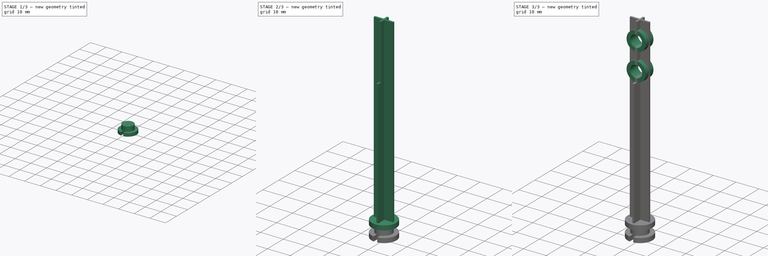
[diagram: build sequence overview — one tinted view per stage of 3, left to right]
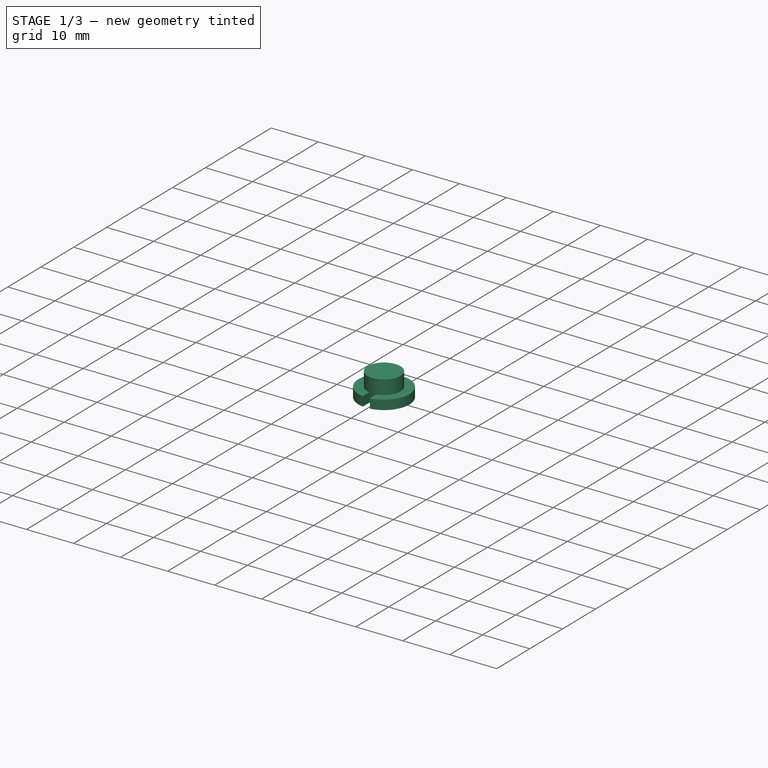
[diagram: stage 1 of 3 — iso view after this stage's code; geometry added in this stage tinted green]
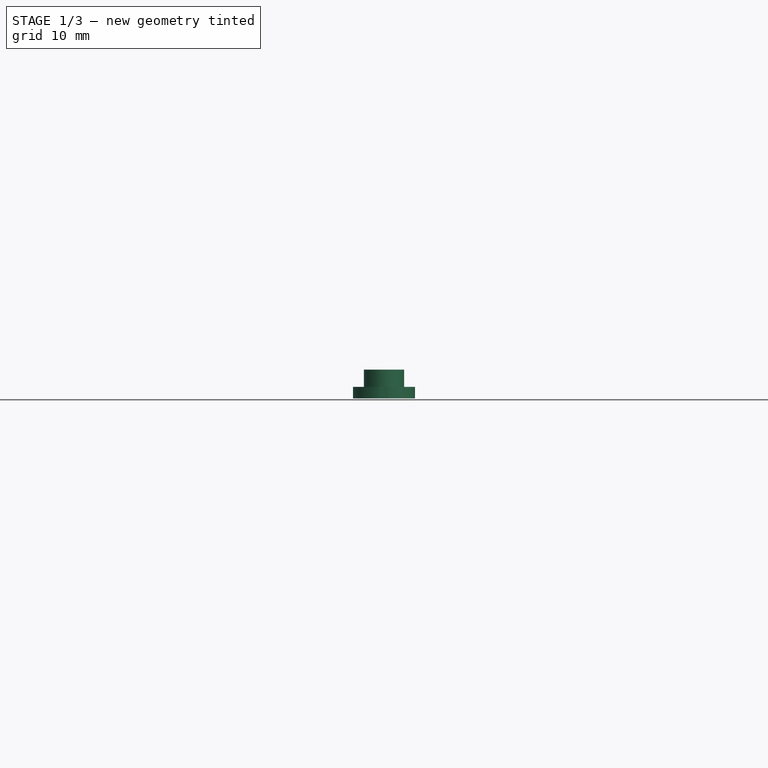
[diagram: stage 1 of 3 — front view after this stage's code; geometry added in this stage tinted green]
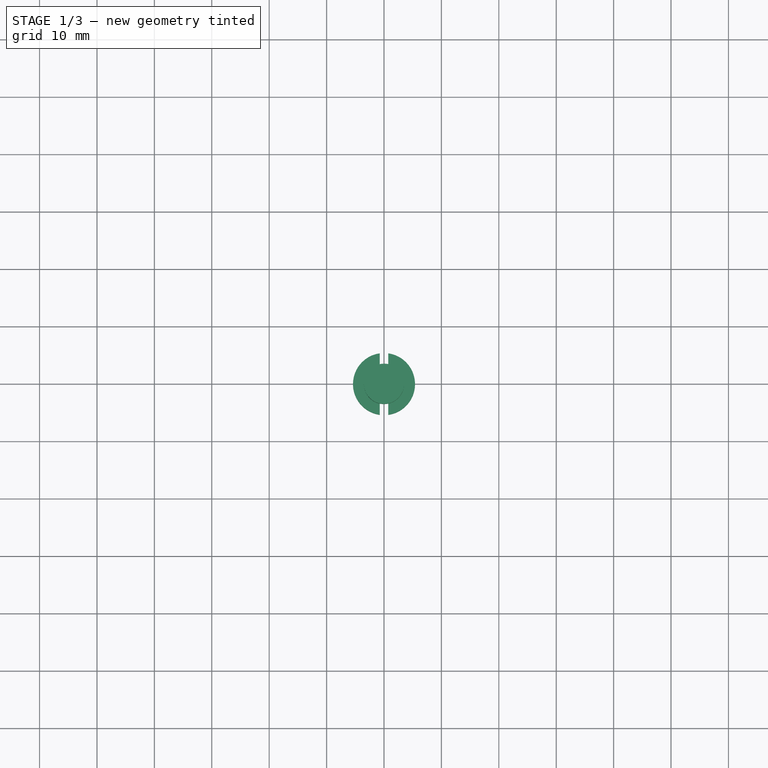
[diagram: stage 1 of 3 — top view after this stage's code; geometry added in this stage tinted green]
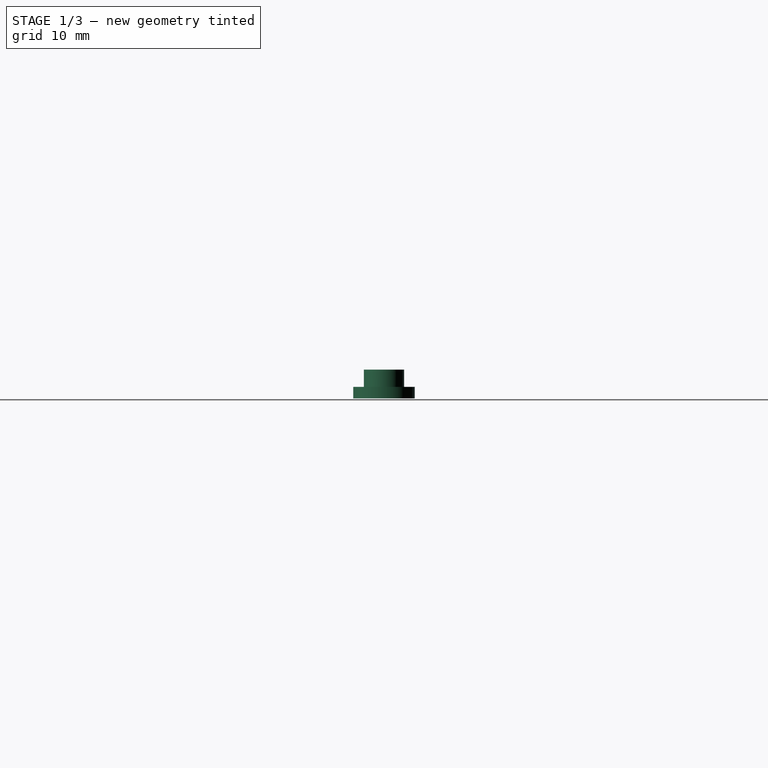
[diagram: stage 1 of 3 — right view after this stage's code; geometry added in this stage tinted green]
FCSTD DOCUMENT  (FreeCAD 0.18.4R)
Label: WaterGunPumpStem
License: All rights reserved
LicenseURL: http://en.wikipedia.org/wiki/All_rights_reserved
objects: Sketcher::SketchObject×9, PartDesign::Pad×6, PartDesign::Pocket×1, PartDesign::Body×1, App::Part×1
note: 24 computed .brp shape members not serialized (recipe doc carries the construction recipe); baked Part::Feature solids carry a one-line shape summary decoded from their .brp

FEATURE [Sketcher::SketchObject] Sketch  label="Template_T"
  MapMode = 5
  Support = -> [XY_Plane001]
  sketch-geometry (22):
    g0: Circle CenterX=0 CenterY=0 CenterZ=0 NormalX=0 NormalY=0 NormalZ=1 AngleXU=0 Radius=5.4
    g1: Circle CenterX=0 CenterY=0 CenterZ=0 NormalX=0 NormalY=0 NormalZ=1 AngleXU=0 Radius=3.5
    g2: LineSegment StartX=-0.75 StartY=5.34766 StartZ=0 EndX=-0.75 EndY=2.75 EndZ=0
    g3: LineSegment StartX=-0.75 StartY=2.75 StartZ=0 EndX=0.75 EndY=2.75 EndZ=0
    g4: LineSegment StartX=0.75 StartY=2.75 StartZ=0 EndX=0.75 EndY=5.34766 EndZ=0
    g5: LineSegment StartX=-0.75 StartY=-5.34766 StartZ=0 EndX=-0.75 EndY=-2.75 EndZ=0
    g6: LineSegment StartX=-0.75 StartY=-2.75 StartZ=0 EndX=0.75 EndY=-2.75 EndZ=0
    g7: LineSegment StartX=0.75 StartY=-2.75 StartZ=0 EndX=0.75 EndY=-5.34766 EndZ=0
    g8: LineSegment StartX=-4.2 StartY=0.4 StartZ=0 EndX=-0.4 EndY=0.4 EndZ=0
    g9: LineSegment StartX=-0.4 StartY=0.4 StartZ=0 EndX=-0.4 EndY=4.2 EndZ=0
    g10: LineSegment StartX=-0.4 StartY=4.2 StartZ=0 EndX=0.4 EndY=4.2 EndZ=0
    g11: LineSegment StartX=0.4 StartY=4.2 StartZ=0 EndX=0.4 EndY=0.4 EndZ=0
    g12: LineSegment StartX=0.4 StartY=0.4 StartZ=0 EndX=4.2 EndY=0.4 EndZ=0
    g13: LineSegment StartX=4.2 StartY=0.4 StartZ=0 EndX=4.2 EndY=-0.4 EndZ=0
    g14: LineSegment StartX=4.2 StartY=-0.4 StartZ=0 EndX=0.4 EndY=-0.4 EndZ=0
    g15: LineSegment StartX=0.4 StartY=-0.4 StartZ=0 EndX=0.4 EndY=-4.2 EndZ=0
    g16: LineSegment StartX=0.4 StartY=-4.2 StartZ=0 EndX=-0.4 EndY=-4.2 EndZ=0
    g17: LineSegment StartX=-0.4 StartY=-4.2 StartZ=0 EndX=-0.4 EndY=-0.4 EndZ=0
    g18: LineSegment StartX=-0.4 StartY=-0.4 StartZ=0 EndX=-4.2 EndY=-0.4 EndZ=0
    g19: LineSegment StartX=-4.2 StartY=-0.4 StartZ=0 EndX=-4.2 EndY=0.4 EndZ=0
    g20: LineSegment StartX=-0.4 StartY=-2.4 StartZ=0 EndX=0.4 EndY=-2.4 EndZ=0
    g21: LineSegment StartX=-0.4 StartY=2.4 StartZ=0 EndX=0.4 EndY=2.4 EndZ=0
  constraints (64):
    c: Coincident(g0,g-1)
    c: Coincident(g1,g0)
    c: Radius(g0) = 5.4  'Ro'
    c: Radius(g1) = 3.5  'Ri'
    c: PointOnObject(g2,g0)
    c: Vertical(g2)
    c: Coincident(g3,g2)
    c: Horizontal(g3)
    c: Coincident(g4,g3)
    c: Vertical(g4)
    c: Symmetric(g2,g4,g-2)
    c: PointOnObject(g5,g0)
    c: Vertical(g5)
    c: Coincident(g6,g5)
    c: Horizontal(g6)
    c: Coincident(g7,g6)
    c: PointOnObject(g7,g0)
    c: Vertical(g7)
    c: PointOnObject(g6,g4)
    c: PointOnObject(g5,g2)
    c: Equal(g5,g2)
    c: DistanceY(g5,g2) = 5.5
    c: DistanceX(g2,g4) = 1.5
    c: Horizontal(g8)
    c: Coincident(g8,g9)
    c: Vertical(g9)
    c: Coincident(g9,g10)
    c: Horizontal(g10)
    c: Coincident(g10,g11)
    c: Vertical(g11)
    c: Coincident(g11,g12)
    c: Horizontal(g12)
    c: Coincident(g12,g13)
    c: Vertical(g13)
    c: Coincident(g13,g14)
    c: Horizontal(g14)
    c: Coincident(g14,g15)
    c: Vertical(g15)
    c: Coincident(g15,g16)
    c: Horizontal(g16)
    c: Coincident(g16,g17)
    c: Vertical(g17)
    c: Coincident(g17,g18)
    c: Horizontal(g18)
    c: Coincident(g18,g19)
    c: Vertical(g19)
    c: Coincident(g19,g8)
    c: Symmetric(g17,g14,g-2)
    c: Symmetric(g8,g17,g-1)
    c: PointOnObject(g11,g8)
    c: PointOnObject(g14,g11)
    c: Equal(g10,g19)
    c: DistanceX(g10,g10) = 0.8
    c: Equal(g12,g8)
    c: Equal(g9,g17)
    c: Equal(g8,g9)
    c: DistanceX(g8,g12) = 8.4  'Span'
    c: PointOnObject(g20,g17)
    c: PointOnObject(g20,g15)
    c: Horizontal(g20)
    c: PointOnObject(g21,g11)
    c: Horizontal(g21)
    c: Symmetric(g21,g20,g-1)
    c: DistanceY(g20,g21) = 4.8  'LockingThickness'
FEATURE [Sketcher::SketchObject] Sketch001  label="Template_F"
  ExternalGeometry = -> [Sketch]
  MapMode = 5
  Placement = pos=(0,0,0) rot=(1,0,0;1.5708rad)
  Support = -> [XZ_Plane001]
  expr: Constraints[28] = Template_T.Constraints.Ri * 2
  expr: Constraints[8] = Template_T.Constraints.Ro * 2
  sketch-geometry (22):
    g0: LineSegment StartX=-5.4 StartY=0 StartZ=0 EndX=5.4 EndY=0 EndZ=0
    g1: LineSegment StartX=5.4 StartY=0 StartZ=0 EndX=5.4 EndY=2 EndZ=0
    g2: LineSegment StartX=5.4 StartY=2 StartZ=0 EndX=-5.4 EndY=2 EndZ=0
    g3: LineSegment StartX=-5.4 StartY=2 StartZ=0 EndX=-5.4 EndY=0 EndZ=0
    g4: LineSegment StartX=-5.4 StartY=7 StartZ=0 EndX=5.4 EndY=7 EndZ=0
    g5: LineSegment StartX=5.4 StartY=7 StartZ=0 EndX=5.4 EndY=5 EndZ=0
    g6: LineSegment StartX=5.4 StartY=5 StartZ=0 EndX=-5.4 EndY=5 EndZ=0
    g7: LineSegment StartX=-5.4 StartY=5 StartZ=0 EndX=-5.4 EndY=7 EndZ=0
    g8: LineSegment StartX=-3.5 StartY=5 StartZ=0 EndX=-3.5 EndY=2 EndZ=0
    g9: LineSegment StartX=3.5 StartY=5 StartZ=0 EndX=3.5 EndY=2 EndZ=0
    g10: LineSegment StartX=-4.2 StartY=7 StartZ=0 EndX=-4.2 EndY=62 EndZ=0
    g11: LineSegment StartX=-4.2 StartY=62 StartZ=0 EndX=4.2 EndY=62 EndZ=0
    g12: LineSegment StartX=4.2 StartY=62 StartZ=0 EndX=4.2 EndY=7 EndZ=0
    g13: LineSegment StartX=-0.4 StartY=7 StartZ=0 EndX=-0.4 EndY=62 EndZ=0
    g14: LineSegment StartX=0.4 StartY=62 StartZ=0 EndX=0.4 EndY=7 EndZ=0
    g15: LineSegment StartX=-4.2 StartY=62 StartZ=0 EndX=-4.2 EndY=86 EndZ=0
    g16: LineSegment StartX=-4.2 StartY=86 StartZ=0 EndX=4.2 EndY=86 EndZ=0
    g17: LineSegment StartX=4.2 StartY=86 StartZ=0 EndX=4.2 EndY=62 EndZ=0
    g18: Circle CenterX=0 CenterY=66.2 CenterZ=0 NormalX=0 NormalY=0 NormalZ=1 AngleXU=0 Radius=4.2
    g19: Circle CenterX=0 CenterY=78.2 CenterZ=0 NormalX=0 NormalY=0 NormalZ=1 AngleXU=0 Radius=4.2
    g20: Circle CenterX=0 CenterY=66.2 CenterZ=0 NormalX=0 NormalY=0 NormalZ=1 AngleXU=0 Radius=2.6
    g21: Circle CenterX=0 CenterY=78.2 CenterZ=0 NormalX=0 NormalY=0 NormalZ=1 AngleXU=0 Radius=2.6
  constraints (66):
    c: Coincident(g0,g1)
    c: Coincident(g1,g2)
    c: Coincident(g2,g3)
    c: Coincident(g3,g0)
    c: Horizontal(g0)
    c: Vertical(g1)
    c: Vertical(g3)
    c: PointOnObject(g-3,g0)
    c: DistanceX(g0,g0) = 10.8
    c: DistanceY(g3,g3) = 2  'DiscHeight'
    c: Symmetric(g2,g1,g-2)
    c: Coincident(g4,g5)
    c: Coincident(g5,g6)
    c: Coincident(g6,g7)
    c: Coincident(g7,g4)
    c: Horizontal(g4)
    c: Horizontal(g6)
    c: Vertical(g5)
    c: Vertical(g7)
    c: PointOnObject(g6,g3)
    c: PointOnObject(g5,g1)
    c: Equal(g7,g3)
    c: PointOnObject(g8,g6)
    c: PointOnObject(g8,g2)
    c: Vertical(g8)
    c: PointOnObject(g9,g2)
    c: Vertical(g9)
    c: Symmetric(g8,g9,g-2)
    c: DistanceX(g8,g9) = 7
    c: DistanceY(g8,g8) = 3  'GapHeight'
    c: PointOnObject(g10,g4)
    c: Vertical(g10)
    c: Coincident(g10,g11)
    c: Horizontal(g11)
    c: Coincident(g11,g12)
    c: PointOnObject(g12,g4)
    c: Vertical(g12)
    c: DistanceY(g10,g10) = 55  'StemHeight'
    c: PointOnObject(g-3,g10)
    c: PointOnObject(g-4,g12)
    c: PointOnObject(g13,g4)
    c: PointOnObject(g13,g11)
    c: Vertical(g13)
    c: PointOnObject(g14,g11)
    c: PointOnObject(g14,g4)
    c: Vertical(g14)
    c: PointOnObject(g-4,g14)
    c: PointOnObject(g-3,g13)
    c: Coincident(g10,g15)
    c: Vertical(g15)
    c: Coincident(g15,g16)
    c: Horizontal(g16)
    c: Coincident(g16,g17)
    c: Coincident(g17,g11)
    c: Vertical(g17)
    c: DistanceY(g15,g15) = 24  'LockingHeight'
    c: PointOnObject(g18,g-2)
    c: Tangent(g17,g18)
    c: Tangent(g18,g11)
    c: PointOnObject(g19,g-2)
    c: Equal(g19,g18)
    c: DistanceY(g18,g19) = 12
    c: Coincident(g20,g18)
    c: Coincident(g21,g19)
    c: Equal(g21,g20)
    c: Radius(g21) = 2.6
FEATURE [Sketcher::SketchObject] Sketch002
  ExternalGeometry = -> [Sketch]
  MapMode = 5
  Support = -> [XY_Plane001]
  sketch-geometry (8):
    g0: ArcOfCircle CenterX=0 CenterY=0 CenterZ=0 NormalX=0 NormalY=0 NormalZ=1 AngleXU=0 Radius=5.4 StartAngle=1.71014 EndAngle=4.57305
    g1: LineSegment StartX=-0.75 StartY=2.75 StartZ=0 EndX=-0.75 EndY=5.34766 EndZ=0
    g2: LineSegment StartX=0.75 StartY=2.75 StartZ=0 EndX=0.75 EndY=5.34766 EndZ=0
    g3: LineSegment StartX=0.75 StartY=2.75 StartZ=0 EndX=-0.75 EndY=2.75 EndZ=0
    g4: LineSegment StartX=-0.75 StartY=-2.75 StartZ=0 EndX=-0.75 EndY=-5.34766 EndZ=0
    g5: LineSegment StartX=0.75 StartY=-2.75 StartZ=0 EndX=0.75 EndY=-5.34766 EndZ=0
    g6: LineSegment StartX=0.75 StartY=-2.75 StartZ=0 EndX=-0.75 EndY=-2.75 EndZ=0
    g7: ArcOfCircle CenterX=0 CenterY=0 CenterZ=0 NormalX=0 NormalY=0 NormalZ=1 AngleXU=0 Radius=5.4 StartAngle=4.85173 EndAngle=7.71464
  constraints (20):
    c: Coincident(g0,g-1)
    c: Equal(g0,g-3)
    c: Coincident(g1,g-4)
    c: Vertical(g1)
    c: Coincident(g2,g-4)
    c: Vertical(g2)
    c: Coincident(g3,g2)
    c: Coincident(g3,g1)
    c: Coincident(g0,g1)
    c: Coincident(g7,g2)
    c: Coincident(g4,g-5)
    c: Vertical(g4)
    c: Coincident(g5,g-5)
    c: Vertical(g5)
    c: Coincident(g6,g5)
    c: Coincident(g6,g4)
    c: Equal(g0,g7)
    c: Coincident(g0,g4)
    c: Coincident(g7,g5)
    c: Coincident(g0,g7)
FEATURE [PartDesign::Pad] Pad
  Length = 2
  Length2 = 100
  Profile = -> Sketch002
  Type = 0
  expr: Length = Template_F.Constraints.DiscHeight
FEATURE [Sketcher::SketchObject] Sketch003
  AttachmentOffset = pos=(0,0,2) rot=(0,0,1;0rad)
  ExternalGeometry = -> [Sketch]
  MapMode = 5
  Placement = pos=(0,0,2) rot=(0,0,1;0rad)
  Support = -> [XY_Plane001]
  expr: AttachmentOffset.Base.z = Sketch002.Placement.Base.z + Pad.Length
  sketch-geometry (1):
    g0: Circle CenterX=0 CenterY=0 CenterZ=0 NormalX=0 NormalY=0 NormalZ=1 AngleXU=0 Radius=3.5
  constraints (2):
    c: Coincident(g0,g-1)
    c: Equal(g0,g-3)
FEATURE [PartDesign::Pad] Pad001
  BaseFeature = -> Pad
  Length = 3
  Length2 = 100
  Profile = -> Sketch003
  Type = 0
  expr: Length = Template_F.Constraints.GapHeight
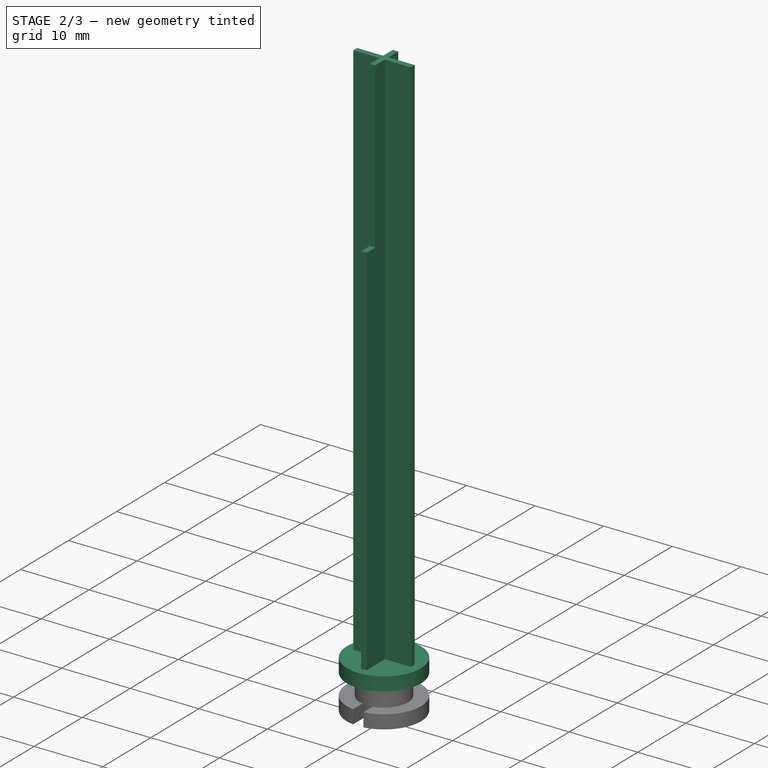
[diagram: stage 2 of 3 — iso view after this stage's code; geometry added in this stage tinted green]
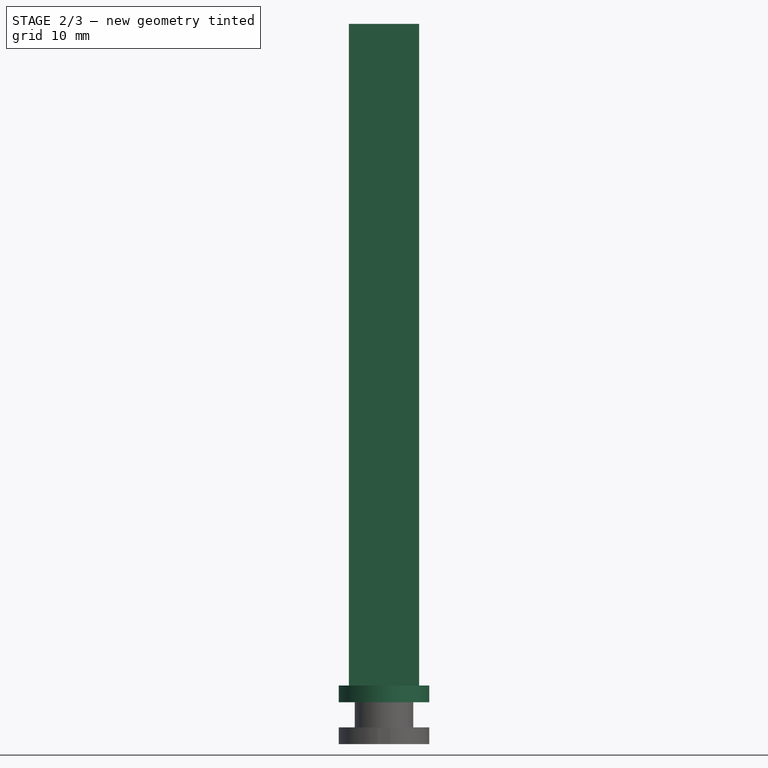
[diagram: stage 2 of 3 — front view after this stage's code; geometry added in this stage tinted green]
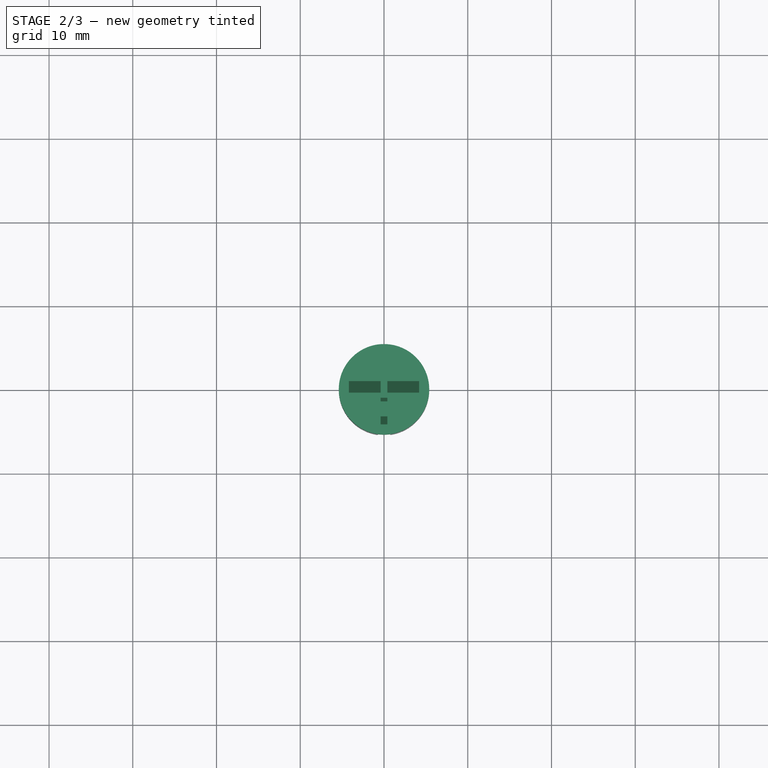
[diagram: stage 2 of 3 — top view after this stage's code; geometry added in this stage tinted green]
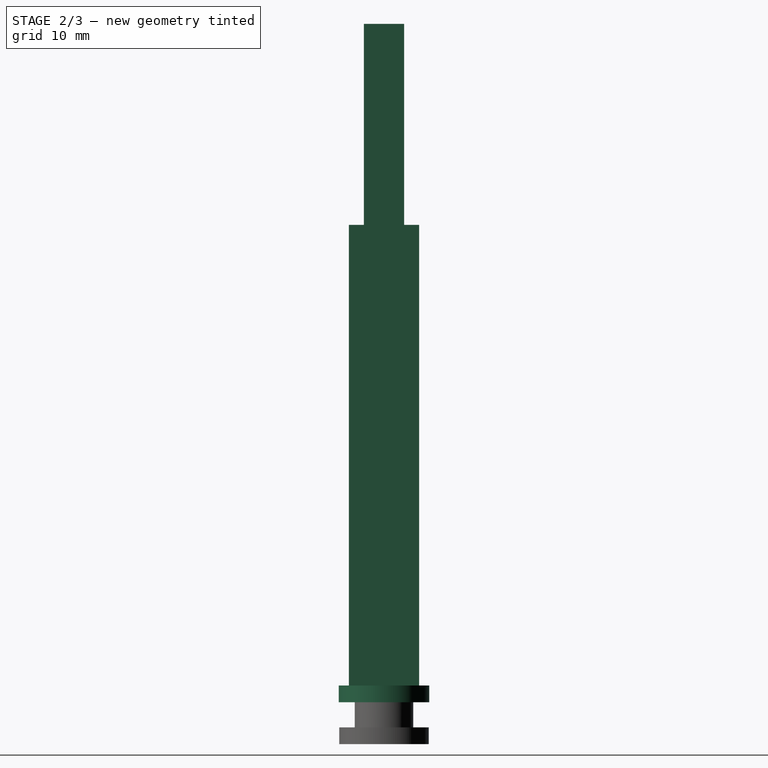
[diagram: stage 2 of 3 — right view after this stage's code; geometry added in this stage tinted green]
FEATURE [Sketcher::SketchObject] Sketch004
  AttachmentOffset = pos=(0,0,5) rot=(0,0,1;0rad)
  ExternalGeometry = -> [Sketch]
  MapMode = 5
  Placement = pos=(0,0,5) rot=(0,0,1;0rad)
  Support = -> [XY_Plane001]
  expr: AttachmentOffset.Base.z = Sketch003.Placement.Base.z + Pad001.Length
  sketch-geometry (1):
    g0: Circle CenterX=0 CenterY=0 CenterZ=0 NormalX=0 NormalY=0 NormalZ=1 AngleXU=0 Radius=5.4
  constraints (2):
    c: Coincident(g0,g-1)
    c: Equal(g0,g-3)
FEATURE [PartDesign::Pad] Pad002
  BaseFeature = -> Pad001
  Length = 2
  Length2 = 100
  Profile = -> Sketch004
  Type = 0
  expr: Length = Template_F.Constraints.DiscHeight
FEATURE [Sketcher::SketchObject] Sketch005
  AttachmentOffset = pos=(0,0,7) rot=(0,0,1;0rad)
  ExternalGeometry = -> [Sketch]
  MapMode = 5
  Placement = pos=(0,0,7) rot=(0,0,1;0rad)
  Support = -> [XY_Plane001]
  expr: AttachmentOffset.Base.z = Sketch004.Placement.Base.z + Pad002.Length
  sketch-geometry (12):
    g0: LineSegment StartX=-4.2 StartY=-0.4 StartZ=0 EndX=-0.4 EndY=-0.4 EndZ=0
    g1: LineSegment StartX=-0.4 StartY=-0.4 StartZ=0 EndX=-0.4 EndY=-4.2 EndZ=0
    g2: LineSegment StartX=-0.4 StartY=-4.2 StartZ=0 EndX=0.4 EndY=-4.2 EndZ=0
    g3: LineSegment StartX=0.4 StartY=-4.2 StartZ=0 EndX=0.4 EndY=-0.4 EndZ=0
    g4: LineSegment StartX=0.4 StartY=-0.4 StartZ=0 EndX=4.2 EndY=-0.4 EndZ=0
    g5: LineSegment StartX=4.2 StartY=-0.4 StartZ=0 EndX=4.2 EndY=0.4 EndZ=0
    g6: LineSegment StartX=4.2 StartY=0.4 StartZ=0 EndX=0.4 EndY=0.4 EndZ=0
    g7: LineSegment StartX=0.4 StartY=0.4 StartZ=0 EndX=0.4 EndY=4.2 EndZ=0
    g8: LineSegment StartX=0.4 StartY=4.2 StartZ=0 EndX=-0.4 EndY=4.2 EndZ=0
    g9: LineSegment StartX=-0.4 StartY=4.2 StartZ=0 EndX=-0.4 EndY=0.4 EndZ=0
    g10: LineSegment StartX=-0.4 StartY=0.4 StartZ=0 EndX=-4.2 EndY=0.4 EndZ=0
    g11: LineSegment StartX=-4.2 StartY=0.4 StartZ=0 EndX=-4.2 EndY=-0.4 EndZ=0
  constraints (24):
    c: Coincident(g-9,g0)
    c: Coincident(g0,g-9)
    c: Coincident(g0,g1)
    c: Coincident(g1,g-8)
    c: Coincident(g1,g2)
    c: Coincident(g2,g-7)
    c: Coincident(g2,g3)
    c: Coincident(g3,g-7)
    c: Coincident(g3,g4)
    c: Coincident(g4,g-6)
    c: Coincident(g4,g5)
    c: Coincident(g5,g-5)
    c: Coincident(g5,g6)
    c: Coincident(g6,g-5)
    c: Coincident(g6,g7)
    c: Coincident(g7,g-4)
    c: Coincident(g7,g8)
    c: Coincident(g8,g-3)
    c: Coincident(g8,g9)
    c: Coincident(g9,g-10)
    c: Coincident(g9,g10)
    c: Coincident(g10,g-10)
    c: Coincident(g10,g11)
    c: Coincident(g11,g0)
FEATURE [PartDesign::Pad] Pad003
  BaseFeature = -> Pad002
  Length = 55
  Length2 = 100
  Profile = -> Sketch005
  Type = 0
  expr: Length = Template_F.Constraints.StemHeight
FEATURE [Sketcher::SketchObject] Sketch006
  AttachmentOffset = pos=(0,0,62) rot=(0,0,1;0rad)
  ExternalGeometry = -> [Sketch]
  MapMode = 5
  Placement = pos=(0,0,62) rot=(0,0,1;0rad)
  Support = -> [XY_Plane001]
  expr: AttachmentOffset.Base.z = Sketch005.Placement.Base.z + Pad003.Length
  sketch-geometry (12):
    g0: LineSegment StartX=4.2 StartY=0.4 StartZ=0 EndX=4.2 EndY=-0.4 EndZ=0
    g1: LineSegment StartX=-4.2 StartY=-0.4 StartZ=0 EndX=-4.2 EndY=0.4 EndZ=0
    g2: LineSegment StartX=-0.4 StartY=2.4 StartZ=0 EndX=-0.4 EndY=0.4 EndZ=0
    g3: LineSegment StartX=-0.4 StartY=0.4 StartZ=0 EndX=-4.2 EndY=0.4 EndZ=0
    g4: LineSegment StartX=-4.2 StartY=-0.4 StartZ=0 EndX=-0.4 EndY=-0.4 EndZ=0
    g5: LineSegment StartX=-0.4 StartY=-0.4 StartZ=0 EndX=-0.4 EndY=-2.4 EndZ=0
    g6: LineSegment StartX=-0.4 StartY=2.4 StartZ=0 EndX=0.4 EndY=2.4 EndZ=0
    g7: LineSegment StartX=0.4 StartY=2.4 StartZ=0 EndX=0.4 EndY=0.4 EndZ=0
    g8: LineSegment StartX=0.4 StartY=0.4 StartZ=0 EndX=4.2 EndY=0.4 EndZ=0
    g9: LineSegment StartX=4.2 StartY=-0.4 StartZ=0 EndX=0.4 EndY=-0.4 EndZ=0
    g10: LineSegment StartX=0.4 StartY=-0.4 StartZ=0 EndX=0.4 EndY=-2.4 EndZ=0
    g11: LineSegment StartX=0.4 StartY=-2.4 StartZ=0 EndX=-0.4 EndY=-2.4 EndZ=0
  constraints (28):
    c: Coincident(g0,g-4)
    c: Coincident(g2,g-5)
    c: Vertical(g2)
    c: Coincident(g3,g2)
    c: Coincident(g3,g1)
    c: Horizontal(g3)
    c: Coincident(g4,g1)
    c: Horizontal(g4)
    c: Coincident(g5,g4)
    c: Coincident(g5,g-6)
    c: Vertical(g5)
    c: Coincident(g1,g-3)
    c: Coincident(g0,g-4)
    c: Coincident(g1,g-3)
    c: Coincident(g2,g6)
    c: Coincident(g6,g-5)
    c: Coincident(g6,g7)
    c: Vertical(g7)
    c: Coincident(g7,g8)
    c: Coincident(g8,g0)
    c: Horizontal(g8)
    c: Coincident(g0,g9)
    c: Horizontal(g9)
    c: Coincident(g9,g10)
    c: Coincident(g10,g-6)
    c: Vertical(g10)
    c: Coincident(g10,g11)
    c: Coincident(g11,g5)
FEATURE [PartDesign::Pad] Pad004
  BaseFeature = -> Pad003
  Length = 24
  Length2 = 100
  Profile = -> Sketch006
  Refine = true
  Type = 0
  expr: Length = Template_F.Constraints.LockingHeight
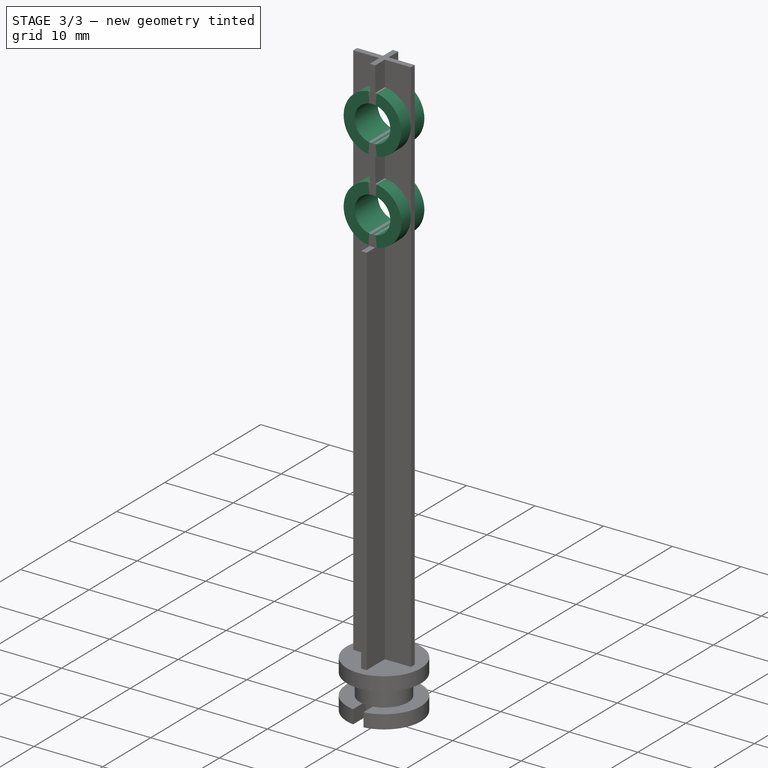
[diagram: stage 3 of 3 — iso view after this stage's code; geometry added in this stage tinted green]
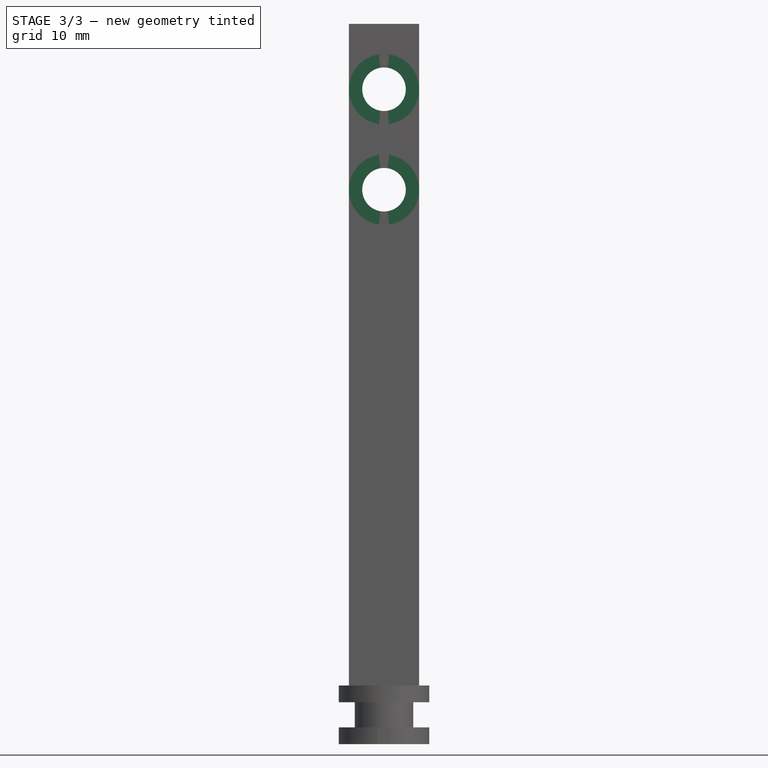
[diagram: stage 3 of 3 — front view after this stage's code; geometry added in this stage tinted green]
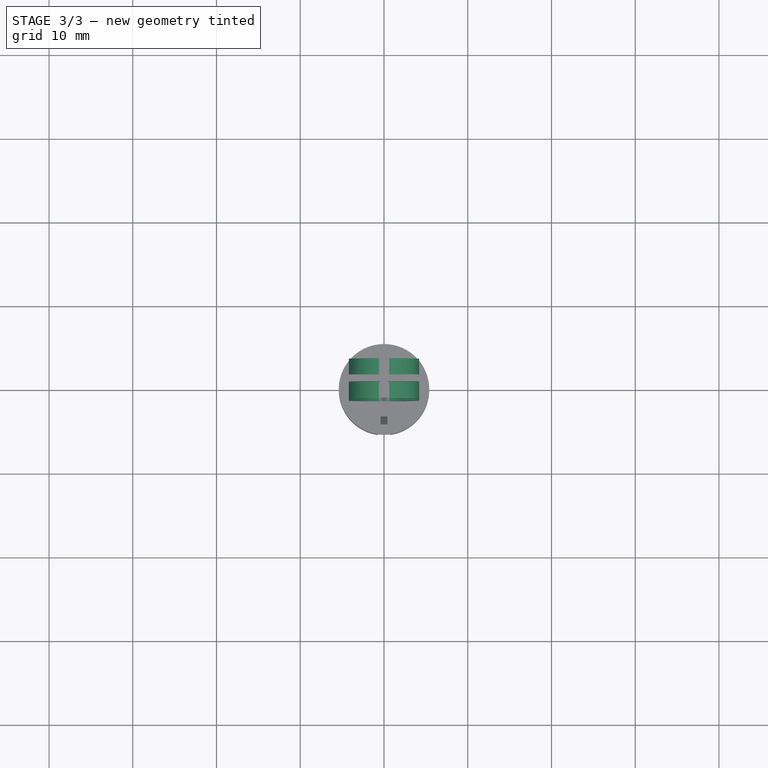
[diagram: stage 3 of 3 — top view after this stage's code; geometry added in this stage tinted green]
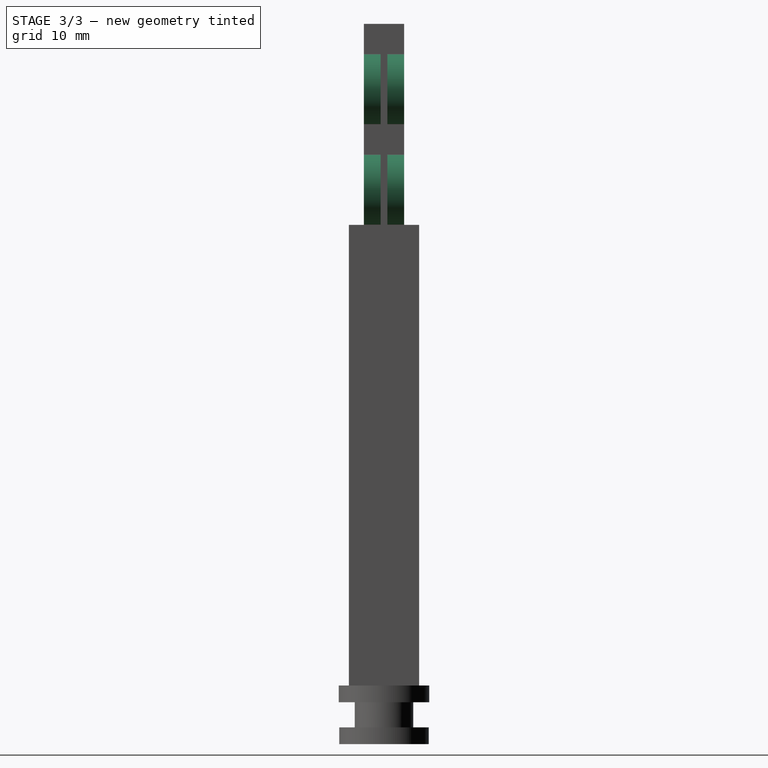
[diagram: stage 3 of 3 — right view after this stage's code; geometry added in this stage tinted green]
FEATURE [Sketcher::SketchObject] Sketch007
  ExternalGeometry = -> [Sketch001]
  MapMode = 5
  Placement = pos=(0,0,0) rot=(1,0,0;1.5708rad)
  Support = -> [XZ_Plane001]
  sketch-geometry (2):
    g0: Circle CenterX=0 CenterY=78.2 CenterZ=0 NormalX=0 NormalY=0 NormalZ=1 AngleXU=0 Radius=4.2
    g1: Circle CenterX=0 CenterY=66.2 CenterZ=0 NormalX=0 NormalY=0 NormalZ=1 AngleXU=0 Radius=4.2
  constraints (4):
    c: Coincident(g0,g-4)
    c: Coincident(g1,g-3)
    c: Equal(g-3,g1)
    c: Equal(g0,g-4)
FEATURE [PartDesign::Pad] Pad005
  BaseFeature = -> Pad004
  Length = 4.8
  Length2 = 100
  Midplane = true
  Profile = -> Sketch007
  Refine = true
  Type = 0
  expr: Length = Template_T.Constraints.LockingThickness
FEATURE [Sketcher::SketchObject] Sketch008
  ExternalGeometry = -> [Sketch001]
  MapMode = 5
  Placement = pos=(0,0,0) rot=(1,0,0;1.5708rad)
  Support = -> [XZ_Plane001]
  sketch-geometry (2):
    g0: Circle CenterX=0 CenterY=66.2 CenterZ=0 NormalX=0 NormalY=0 NormalZ=1 AngleXU=0 Radius=2.6
    g1: Circle CenterX=0 CenterY=78.2 CenterZ=0 NormalX=0 NormalY=0 NormalZ=1 AngleXU=0 Radius=2.6
  constraints (4):
    c: Coincident(g0,g-4)
    c: Coincident(g1,g-3)
    c: Equal(g1,g-3)
    c: Equal(g-4,g0)
FEATURE [PartDesign::Pocket] Pocket
  BaseFeature = -> Pad005
  Length = 5
  Length2 = 100
  Midplane = true
  Profile = -> Sketch008
  Type = 1
FEATURE [PartDesign::Body] Body
  Group = -> [Sketch,Sketch001,Sketch002,Pad,Sketch003,Pad001,Sketch004,Pad002,Sketch005,Pad003,Sketch006,Pad004,Sketch007,Pad005,Sketch008,Pocket]
  Origin = -> Origin001
  Tip = -> Pocket
FEATURE [App::Part] Part
  Group = -> [Body]
  Origin = -> Origin
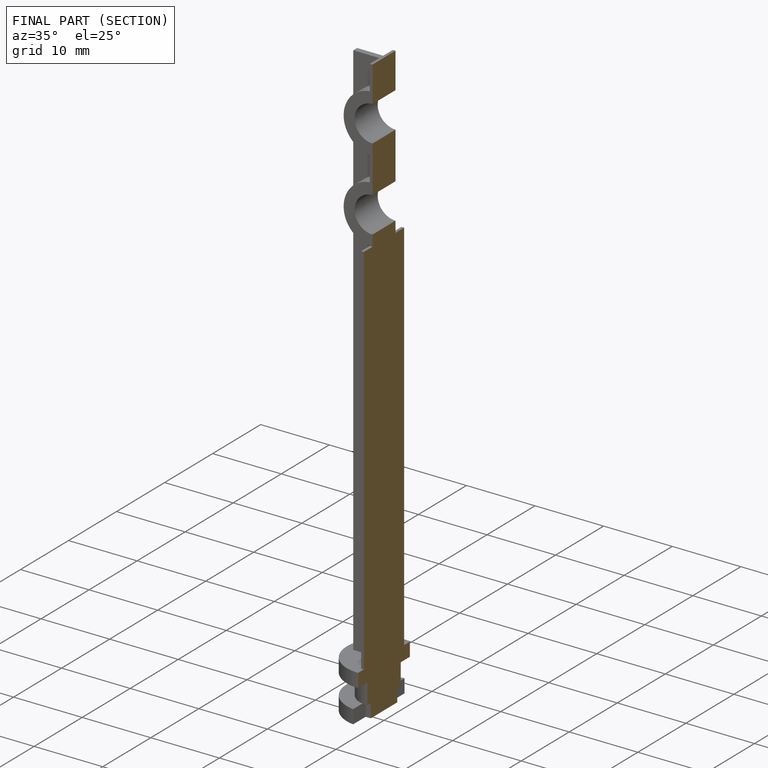
[diagram: finished part — half-section view (interior)]
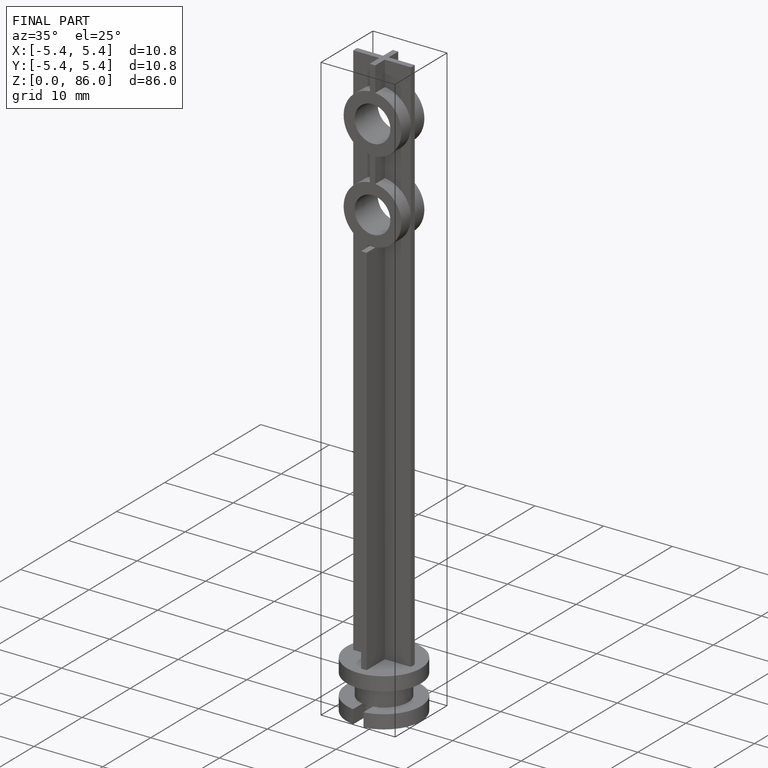
[diagram: finished part — iso view with bounding-box wireframe]
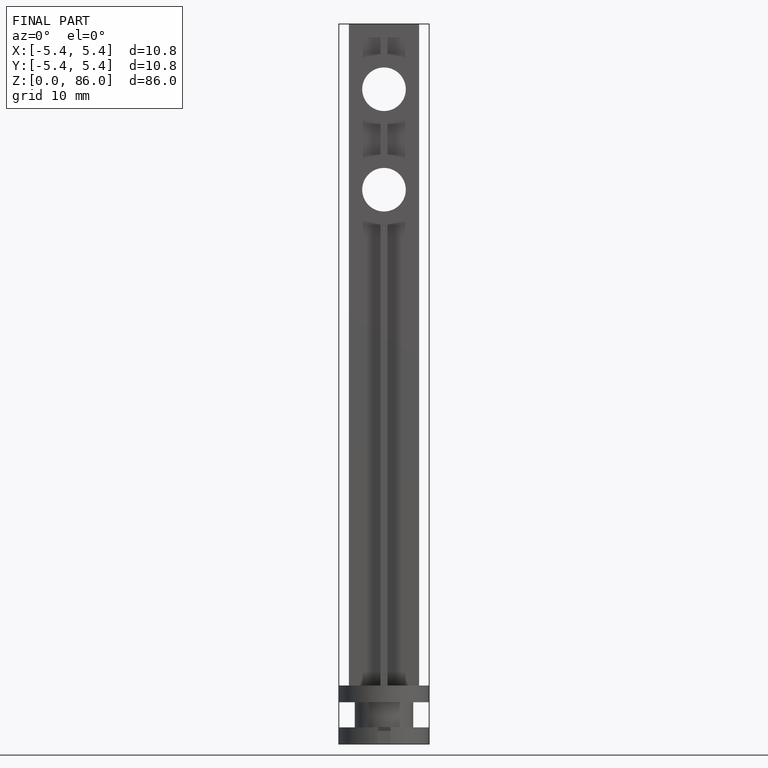
[diagram: finished part — front view with bounding-box wireframe]
